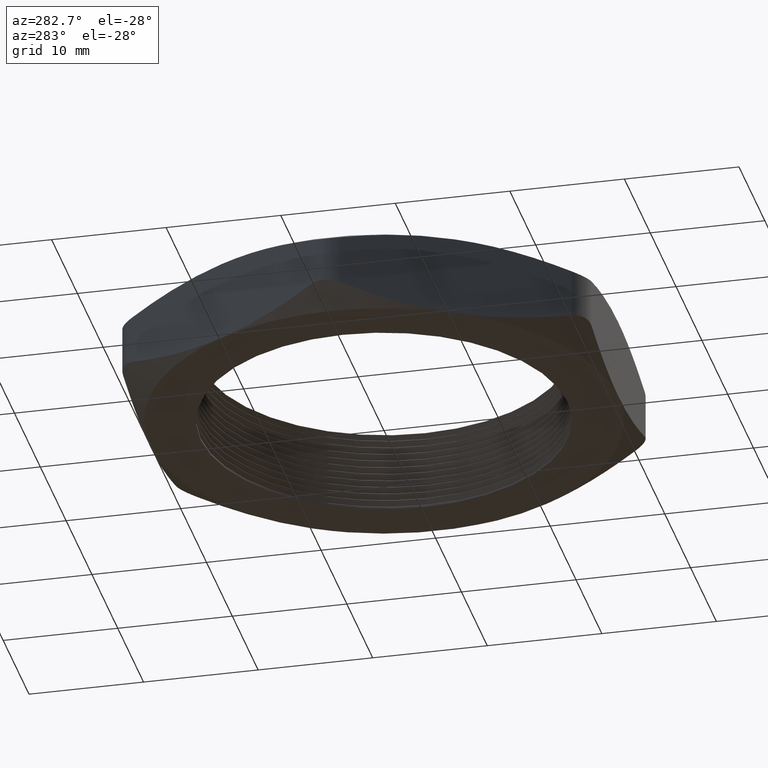
[diagram: clean part render]
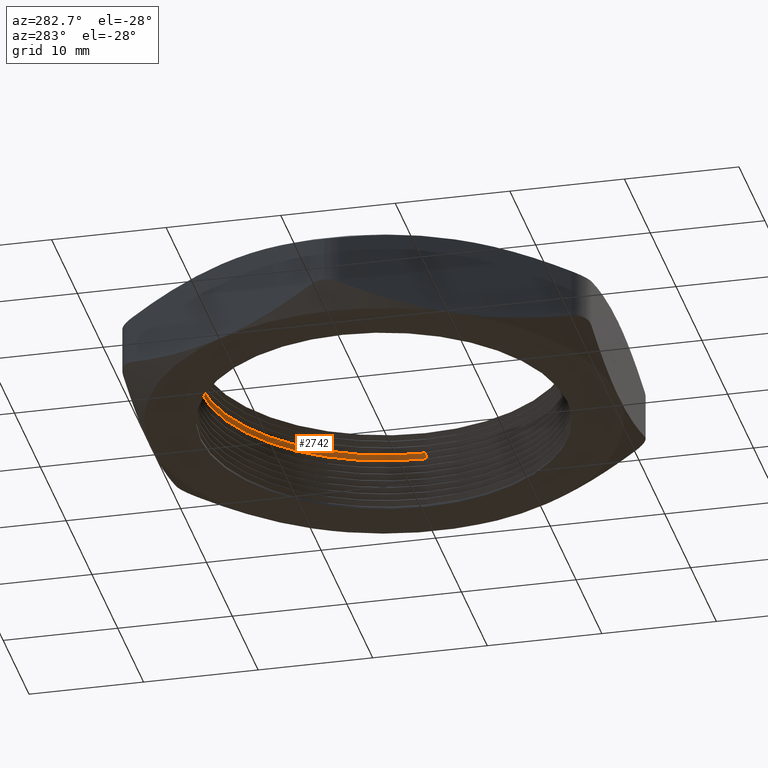
[diagram: same view with one face highlighted and labeled with its STEP entity id]
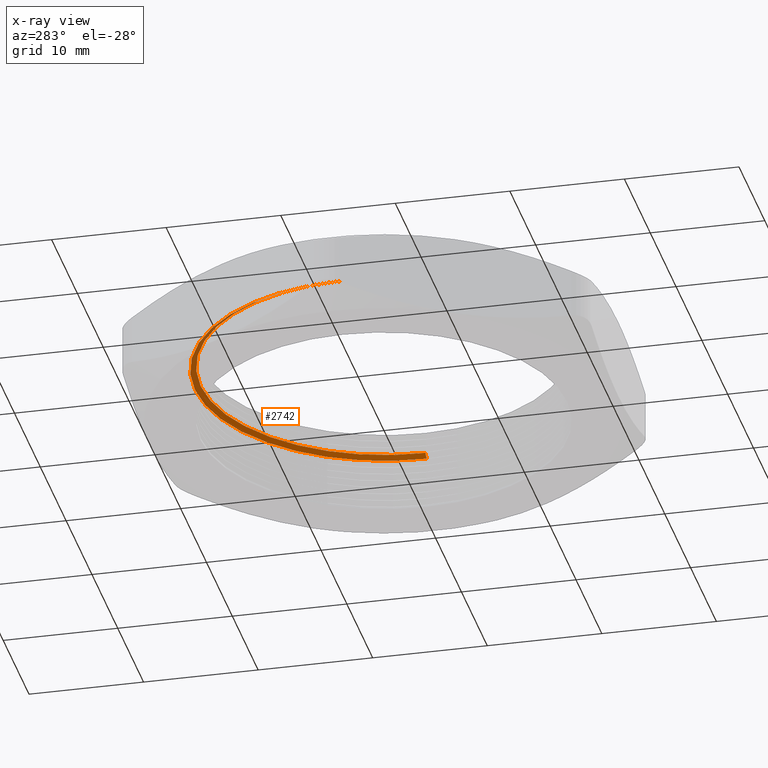
[diagram: x-ray of the same camera — body ghosted, the highlighted face saturated]
A machine part, auxiliary view. The second image highlights one B-rep face of the part: STEP entity #2742.
The next image is the same camera in x-ray: the body ghosted, the highlighted face saturated — about 22% of this face is hidden behind the body in this view.
In plain terms, the highlighted conical surface has half-angle 60 deg.
Its self-contained STEP definition (entity closure, byte-faithful):
#1434 = CARTESIAN_POINT ( 'NONE',  ( 0.6300000000000000000, 7.715274834628325400E-017, 0.2049999999999999900 ) ) ;
#1435 = CARTESIAN_POINT ( 'NONE',  ( -0.6300000000000000000, 0.0000000000000000000, 0.2049999999999999900 ) ) ;
#1451 = CARTESIAN_POINT ( 'NONE',  ( 0.6500000000000000200, 7.960204194457796700E-017, 0.1934529946162077400 ) ) ;
#1457 = CARTESIAN_POINT ( 'NONE',  ( -0.6500000000000000200, 0.0000000000000000000, 0.1934529946162077400 ) ) ;
#1490 = DIRECTION ( 'NONE',  ( -0.8660254037844437000, 0.0000000000000000000, -0.4999999999999912300 ) ) ;
#1491 = VECTOR ( 'NONE', #1490, 39.37007874015748100 ) ;
#1492 = CARTESIAN_POINT ( 'NONE',  ( -0.6500000000000000200, 0.0000000000000000000, 0.1934529946162077400 ) ) ;
#1493 = LINE ( 'NONE', #1492, #1491 ) ;
#1495 = DIRECTION ( 'NONE',  ( 0.8660254037844437000, 1.060575238724913100E-016, -0.4999999999999912300 ) ) ;
#1496 = VECTOR ( 'NONE', #1495, 39.37007874015748100 ) ;
#1497 = CARTESIAN_POINT ( 'NONE',  ( 0.6500000000000000200, 7.960204194457796700E-017, 0.1934529946162077400 ) ) ;
#1498 = LINE ( 'NONE', #1497, #1496 ) ;
#1796 = CARTESIAN_POINT ( 'NONE',  ( 0.0000000000000000000, 0.0000000000000000000, 0.2049999999999999900 ) ) ;
#1797 = AXIS2_PLACEMENT_3D ( 'NONE', #1796, #1855, #1854 ) ;
#1798 = CIRCLE ( 'NONE', #1797, 0.6300000000000000000 ) ;
#1854 = DIRECTION ( 'NONE',  ( 1.000000000000000000, 0.0000000000000000000, 0.0000000000000000000 ) ) ;
#1855 = DIRECTION ( 'NONE',  ( 0.0000000000000000000, 0.0000000000000000000, 1.000000000000000000 ) ) ;
#1976 = DIRECTION ( 'NONE',  ( 1.000000000000000000, 0.0000000000000000000, 0.0000000000000000000 ) ) ;
#1977 = DIRECTION ( 'NONE',  ( 0.0000000000000000000, 0.0000000000000000000, 1.000000000000000000 ) ) ;
#1978 = AXIS2_PLACEMENT_3D ( 'NONE', #1983, #1977, #1976 ) ;
#1979 = CIRCLE ( 'NONE', #1978, 0.6500000000000000200 ) ;
#1983 = CARTESIAN_POINT ( 'NONE',  ( 0.0000000000000000000, 0.0000000000000000000, 0.1934529946162077400 ) ) ;
#2023 = DIRECTION ( 'NONE',  ( -1.000000000000000000, 0.0000000000000000000, 0.0000000000000000000 ) ) ;
#2024 = DIRECTION ( 'NONE',  ( 0.0000000000000000000, 0.0000000000000000000, -1.000000000000000000 ) ) ;
#2025 = AXIS2_PLACEMENT_3D ( 'NONE', #2032, #2024, #2023 ) ;
#2027 = CONICAL_SURFACE ( 'NONE', #2025, 0.6500000000000000200, 1.047197551196607800 ) ;
#2028 = FACE_OUTER_BOUND ( 'NONE', #2740, .T. ) ;
#2032 = CARTESIAN_POINT ( 'NONE',  ( 0.0000000000000000000, 0.0000000000000000000, 0.1934529946162077400 ) ) ;
#2459 = VERTEX_POINT ( 'NONE', #1457 ) ;
#2462 = VERTEX_POINT ( 'NONE', #1451 ) ;
#2469 = VERTEX_POINT ( 'NONE', #1435 ) ;
#2470 = VERTEX_POINT ( 'NONE', #1434 ) ;
#2472 = EDGE_CURVE ( 'NONE', #2470, #2462, #1498, .T. ) ;
#2476 = EDGE_CURVE ( 'NONE', #2469, #2459, #1493, .T. ) ;
#2650 = EDGE_CURVE ( 'NONE', #2470, #2469, #1798, .T. ) ;
#2724 = ORIENTED_EDGE ( 'NONE', *, *, #2476, .T. ) ;
#2725 = EDGE_CURVE ( 'NONE', #2462, #2459, #1979, .T. ) ;
#2726 = ORIENTED_EDGE ( 'NONE', *, *, #2725, .F. ) ;
#2737 = ORIENTED_EDGE ( 'NONE', *, *, #2650, .T. ) ;
#2740 = EDGE_LOOP ( 'NONE', ( #2741, #2737, #2724, #2726 ) ) ;
#2741 = ORIENTED_EDGE ( 'NONE', *, *, #2472, .F. ) ;
#2742 = ADVANCED_FACE ( 'NONE', ( #2028 ), #2027, .F. ) ;